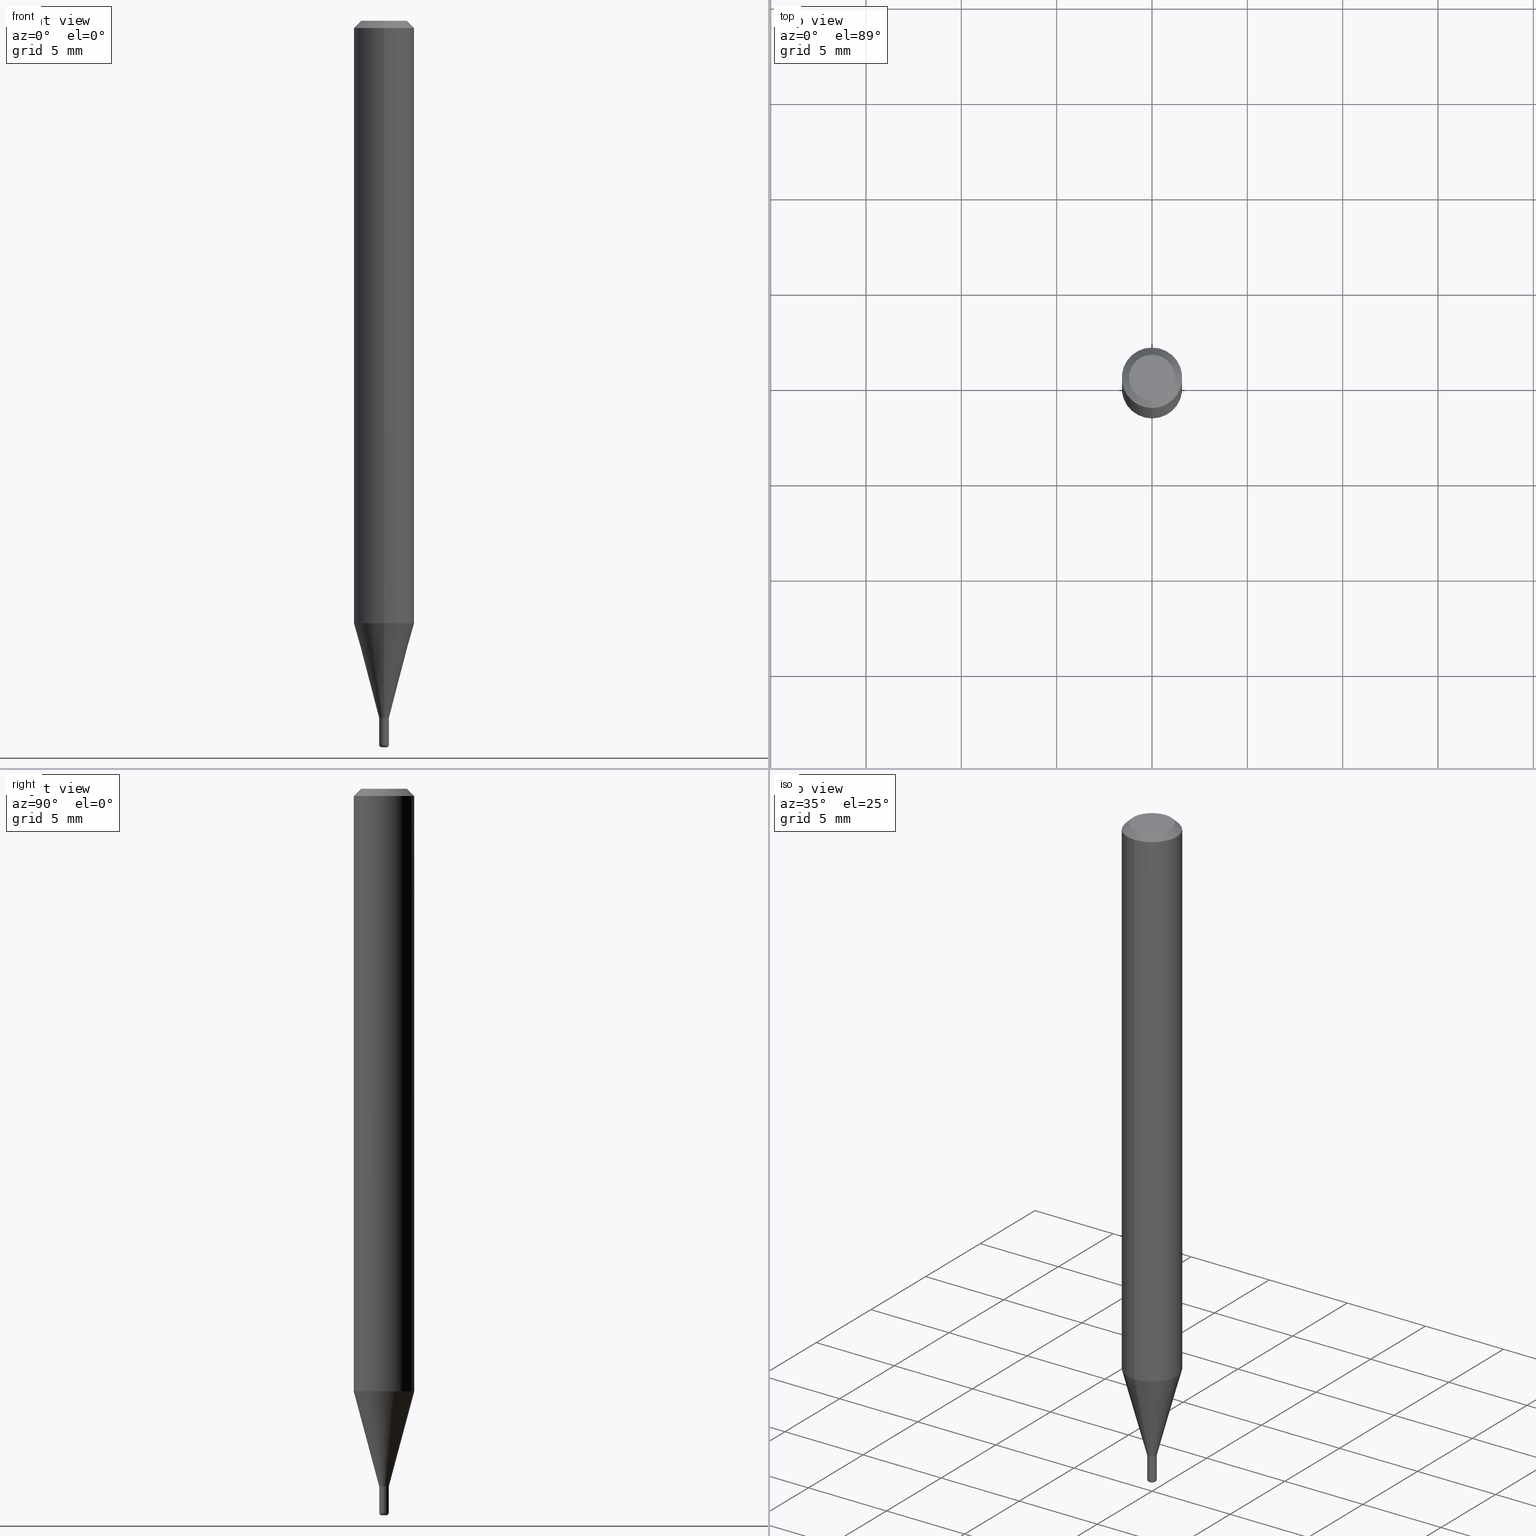
[diagram: canonical four-view strip — front | top / right | iso, engineering-drawing reading convention]
A machine part, canonical four-view strip (front | top / right | iso — engineering-drawing reading convention). The complete STEP part file that produces these views, byte-faithful:
ISO-10303-21;
HEADER;
FILE_DESCRIPTION (( 'STEP AP203' ),
    '1' );
FILE_NAME ('04021.STEP',
    '2024-02-29T19:34:22',
    ( '' ),
    ( '' ),
    'SwSTEP 2.0',
    'SolidWorks 2023',
    '' );
FILE_SCHEMA (( 'CONFIG_CONTROL_DESIGN' ));
ENDSEC;

DATA;
#1 = ORIENTED_EDGE ( 'NONE', *, *, #300, .T. ) ;
#2 = AXIS2_PLACEMENT_3D ( 'NONE', #41, #481, #442 ) ;
#3 = FACE_OUTER_BOUND ( 'NONE', #388, .T. ) ;
#4 = CC_DESIGN_APPROVAL ( #179, ( #434 ) ) ;
#5 = ORIENTED_EDGE ( 'NONE', *, *, #29, .F. ) ;
#6 = ORIENTED_EDGE ( 'NONE', *, *, #398, .T. ) ;
#7 = EDGE_CURVE ( 'NONE', #122, #465, #390, .T. ) ;
#8 = ORIENTED_EDGE ( 'NONE', *, *, #183, .T. ) ;
#9 = CARTESIAN_POINT ( 'NONE',  ( 3.042202856821611615E-29, -4.343816880085084386E-15, -1.244067332602634801 ) ) ;
#10 = APPROVAL_STATUS ( 'not_yet_approved' ) ;
#11 = ORIENTED_EDGE ( 'NONE', *, *, #360, .T. ) ;
#12 = CARTESIAN_POINT ( 'NONE',  ( 3.655975865246779683E-29, -5.219764601570503930E-15, -1.495000000000000329 ) ) ;
#13 = ORIENTED_EDGE ( 'NONE', *, *, #318, .F. ) ;
#14 = ADVANCED_BREP_SHAPE_REPRESENTATION ( '04021', ( #82, #422, #243 ), #107 ) ;
#15 =( LENGTH_UNIT ( ) NAMED_UNIT ( * ) SI_UNIT ( $, .METRE. ) );
#16 = CALENDAR_DATE ( 2024, 29, 2 ) ;
#17 = ORIENTED_EDGE ( 'NONE', *, *, #349, .T. ) ;
#18 = AXIS2_PLACEMENT_3D ( 'NONE', #396, #350, #392 ) ;
#19 = APPROVAL_PERSON_ORGANIZATION ( #449, #179, #219 ) ;
#20 = DIRECTION ( 'NONE',  ( 1.000000000000000000, -6.982962677686306942E-15, 0.000000000000000000 ) ) ;
#21 = EDGE_CURVE ( 'NONE', #220, #316, #312, .T. ) ;
#22 = CARTESIAN_POINT ( 'NONE',  ( 3.521330396690333980E-29, -5.027940323966735147E-15, -1.440000000000000391 ) ) ;
#23 = EDGE_CURVE ( 'NONE', #465, #51, #25, .T. ) ;
#24 = FACE_OUTER_BOUND ( 'NONE', #450, .T. ) ;
#25 = CIRCLE ( 'NONE', #208, 0.01000000000000008521 ) ;
#26 = FACE_OUTER_BOUND ( 'NONE', #73, .T. ) ;
#27 = PRODUCT_DEFINITION_FORMATION_WITH_SPECIFIED_SOURCE ( 'ANY', '', #279, .NOT_KNOWN. ) ;
#28 = CARTESIAN_POINT ( 'NONE',  ( 3.521330396690333980E-29, -5.027940323966735147E-15, -1.440000000000000391 ) ) ;
#29 = EDGE_CURVE ( 'NONE', #118, #47, #504, .T. ) ;
#30 = CARTESIAN_POINT ( 'NONE',  ( 4.440892098500625669E-16, 0.06250000000000000000, -2.182265765610561363E-16 ) ) ;
#31 = DIRECTION ( 'NONE',  ( -2.445368331034953437E-29, 3.491625224976898181E-15, 1.000000000000000000 ) ) ;
#32 = DIRECTION ( 'NONE',  ( -6.982962677686264344E-15, -1.000000000000000000, 0.000000000000000000 ) ) ;
#33 = ADVANCED_FACE ( 'NONE', ( #385 ), #124, .T. ) ;
#34 = DIMENSIONAL_EXPONENTS ( 1.000000000000000000, 0.000000000000000000, 0.000000000000000000, 0.000000000000000000, 0.000000000000000000, 0.000000000000000000, 0.000000000000000000 ) ;
#35 = FACE_OUTER_BOUND ( 'NONE', #137, .T. ) ;
#36 = ORIENTED_EDGE ( 'NONE', *, *, #447, .T. ) ;
#37 = CIRCLE ( 'NONE', #355, 0.01000000000000010256 ) ;
#38 = ORIENTED_EDGE ( 'NONE', *, *, #472, .T. ) ;
#39 = EDGE_LOOP ( 'NONE', ( #161, #17, #225, #272 ) ) ;
#40 = EDGE_CURVE ( 'NONE', #51, #465, #345, .T. ) ;
#41 = CARTESIAN_POINT ( 'NONE',  ( 3.521330396690333420E-29, -5.027940323966734358E-15, -1.440000000000000169 ) ) ;
#42 = EDGE_LOOP ( 'NONE', ( #280, #325, #397, #291 ) ) ;
#43 = LINE ( 'NONE', #448, #497 ) ;
#44 = VECTOR ( 'NONE', #344, 39.37007874015748143 ) ;
#45 = VECTOR ( 'NONE', #452, 39.37007874015748143 ) ;
#46 = SECURITY_CLASSIFICATION ( '', '', #171 ) ;
#47 = VERTEX_POINT ( 'NONE', #383 ) ;
#48 = EDGE_LOOP ( 'NONE', ( #477, #180, #165, #98 ) ) ;
#49 = FACE_OUTER_BOUND ( 'NONE', #134, .T. ) ;
#50 = VECTOR ( 'NONE', #214, 39.37007874015748143 ) ;
#51 = VERTEX_POINT ( 'NONE', #261 ) ;
#52 = DIRECTION ( 'NONE',  ( -2.438088387897960049E-29, 3.491481338843145188E-15, 1.000000000000000000 ) ) ;
#53 = ORIENTED_EDGE ( 'NONE', *, *, #217, .T. ) ;
#54 = CARTESIAN_POINT ( 'NONE',  ( 3.668536724130485580E-29, -5.236744396013051988E-15, -1.500000000000000444 ) ) ;
#55 = PERSON_AND_ORGANIZATION_ROLE ( 'creator' ) ;
#56 = CARTESIAN_POINT ( 'NONE',  ( 3.521330396690333980E-29, -5.027940323966735147E-15, -1.440000000000000391 ) ) ;
#57 = PERSON_AND_ORGANIZATION ( #210, #339 ) ;
#58 = VERTEX_POINT ( 'NONE', #353 ) ;
#59 = VECTOR ( 'NONE', #509, 39.37007874015748143 ) ;
#60 = AXIS2_PLACEMENT_3D ( 'NONE', #12, #138, #294 ) ;
#61 = ORIENTED_EDGE ( 'NONE', *, *, #21, .F. ) ;
#62 = PRODUCT_RELATED_PRODUCT_CATEGORY ( 'detail', '', ( #279 ) ) ;
#63 = CARTESIAN_POINT ( 'NONE',  ( 0.01000000000000017542, -5.289594228347368806E-15, -1.495000000000000329 ) ) ;
#64 = APPLICATION_PROTOCOL_DEFINITION ( 'international standard', 'config_control_design', 1994, #160 ) ;
#65 = CARTESIAN_POINT ( 'NONE',  ( 3.655975865246779683E-29, -5.219764601570503930E-15, -1.495000000000000329 ) ) ;
#66 = CARTESIAN_POINT ( 'NONE',  ( 3.521330396690333980E-29, -5.027940323966735147E-15, -1.440000000000000391 ) ) ;
#67 = AXIS2_PLACEMENT_3D ( 'NONE', #331, #287, #400 ) ;
#68 = AXIS2_PLACEMENT_3D ( 'NONE', #414, #250, #494 ) ;
#69 = ADVANCED_FACE ( 'NONE', ( #153 ), #221, .T. ) ;
#70 = DIRECTION ( 'NONE',  ( 6.982962677686265922E-15, 1.000000000000000000, -3.483106191921935554E-15 ) ) ;
#71 = CARTESIAN_POINT ( 'NONE',  ( 4.364351673553919652E-16, 0.06249999999999995143, -0.01500000000000046782 ) ) ;
#72 = FACE_OUTER_BOUND ( 'NONE', #42, .T. ) ;
#73 = EDGE_LOOP ( 'NONE', ( #478, #440, #376, #329 ) ) ;
#74 = UNCERTAINTY_MEASURE_WITH_UNIT (LENGTH_MEASURE( 1.000000000000000082E-05 ), #101, 'distance_accuracy_value', 'NONE');
#75 = LINE ( 'NONE', #315, #106 ) ;
#76 = ORIENTED_EDGE ( 'NONE', *, *, #378, .F. ) ;
#77 = ADVANCED_FACE ( 'NONE', ( #343 ), #330, .T. ) ;
#78 = AXIS2_PLACEMENT_3D ( 'NONE', #306, #114, #231 ) ;
#79 = APPROVAL_PERSON_ORGANIZATION ( #438, #145, #480 ) ;
#80 = DIRECTION ( 'NONE',  ( -1.000000000000000000, 7.105427357601055501E-15, 0.000000000000000000 ) ) ;
#81 = CC_DESIGN_PERSON_AND_ORGANIZATION_ASSIGNMENT ( #99, #55, ( #27 ) ) ;
#82 = MANIFOLD_SOLID_BREP ( 'Body-Move/Copy2[1]', #259 ) ;
#83 = PLANE ( 'NONE',  #67 ) ;
#84 = CARTESIAN_POINT ( 'NONE',  ( -6.982962677682815691E-17, -0.01000000000000513152, -1.440000000000000391 ) ) ;
#85 = ORIENTED_EDGE ( 'NONE', *, *, #7, .F. ) ;
#86 = EDGE_CURVE ( 'NONE', #119, #51, #263, .T. ) ;
#87 = CARTESIAN_POINT ( 'NONE',  ( 3.521330396690333420E-29, -5.027940323966734358E-15, -1.440000000000000169 ) ) ;
#88 = ORIENTED_EDGE ( 'NONE', *, *, #289, .T. ) ;
#89 = AXIS2_PLACEMENT_3D ( 'NONE', #159, #433, #163 ) ;
#90 = DIRECTION ( 'NONE',  ( -2.445468806185136597E-29, 3.491481338843145583E-15, 1.000000000000000000 ) ) ;
#91 = AXIS2_PLACEMENT_3D ( 'NONE', #56, #143, #377 ) ;
#92 = CC_DESIGN_DATE_AND_TIME_ASSIGNMENT ( #139, #295, ( #46 ) ) ;
#93 = EDGE_LOOP ( 'NONE', ( #482, #1, #363, #277 ) ) ;
#94 = DIRECTION ( 'NONE',  ( -2.445368331034953437E-29, 3.491625224976898181E-15, 1.000000000000000000 ) ) ;
#95 = CARTESIAN_POINT ( 'NONE',  ( -4.364351673553916201E-16, -0.06250000000000000000, 2.182265765610561363E-16 ) ) ;
#96 = PERSON_AND_ORGANIZATION ( #210, #339 ) ;
#97 = AXIS2_PLACEMENT_3D ( 'NONE', #299, #358, #271 ) ;
#98 = ORIENTED_EDGE ( 'NONE', *, *, #103, .F. ) ;
#99 = PERSON_AND_ORGANIZATION ( #210, #339 ) ;
#100 = VERTEX_POINT ( 'NONE', #467 ) ;
#101 =( CONVERSION_BASED_UNIT ( 'INCH', #310 ) LENGTH_UNIT ( ) NAMED_UNIT ( #34 ) );
#102 = DIRECTION ( 'NONE',  ( -6.982962677686265133E-15, -1.000000000000000000, 3.491625224976898181E-15 ) ) ;
#103 = EDGE_CURVE ( 'NONE', #100, #459, #260, .T. ) ;
#104 = CARTESIAN_POINT ( 'NONE',  ( -6.633814543798489092E-17, -0.009500000000005111994, -1.440000000000000169 ) ) ;
#105 = DIRECTION ( 'NONE',  ( 1.000000000000000000, -6.982962677686235945E-15, 0.000000000000000000 ) ) ;
#106 = VECTOR ( 'NONE', #236, 39.37007874015748143 ) ;
#107 =( GEOMETRIC_REPRESENTATION_CONTEXT ( 3 ) GLOBAL_UNCERTAINTY_ASSIGNED_CONTEXT ( ( #74 ) ) GLOBAL_UNIT_ASSIGNED_CONTEXT ( ( #101, #255, #108 ) ) REPRESENTATION_CONTEXT ( 'NONE', 'WORKASPACE' ) );
#108 =( NAMED_UNIT ( * ) SI_UNIT ( $, .STERADIAN. ) SOLID_ANGLE_UNIT ( ) );
#109 = CARTESIAN_POINT ( 'NONE',  ( -6.633814543798489092E-17, -0.009500000000005111994, -1.440000000000000169 ) ) ;
#110 = ORIENTED_EDGE ( 'NONE', *, *, #447, .F. ) ;
#111 = DIRECTION ( 'NONE',  ( -2.445368331034953437E-29, 3.491625224976898181E-15, 1.000000000000000000 ) ) ;
#112 = CC_DESIGN_PERSON_AND_ORGANIZATION_ASSIGNMENT ( #327, #485, ( #46 ) ) ;
#113 = DIRECTION ( 'NONE',  ( -6.982962677686265133E-15, -1.000000000000000000, 3.491625224976898181E-15 ) ) ;
#114 = DIRECTION ( 'NONE',  ( -2.445368331034953437E-29, 3.491625224976898181E-15, 1.000000000000000000 ) ) ;
#115 = VECTOR ( 'NONE', #268, 39.37007874015748143 ) ;
#116 = CIRCLE ( 'NONE', #60, 0.01000000000000017542 ) ;
#117 = LINE ( 'NONE', #194, #59 ) ;
#118 = VERTEX_POINT ( 'NONE', #63 ) ;
#119 = VERTEX_POINT ( 'NONE', #298 ) ;
#120 = ADVANCED_FACE ( 'NONE', ( #147 ), #227, .F. ) ;
#121 = DIRECTION ( 'NONE',  ( -6.982962677686266711E-15, -1.000000000000000000, 3.491481338843145583E-15 ) ) ;
#122 = VERTEX_POINT ( 'NONE', #104 ) ;
#123 = CARTESIAN_POINT ( 'NONE',  ( 3.655975865246779122E-29, -5.219764601570503141E-15, -1.495000000000000107 ) ) ;
#124 = CONICAL_SURFACE ( 'NONE', #184, 0.06250000000000000000, 0.7853981633974491672 ) ;
#125 = CIRCLE ( 'NONE', #2, 0.009500000000000084766 ) ;
#126 = VERTEX_POINT ( 'NONE', #419 ) ;
#127 = ADVANCED_FACE ( 'NONE', ( #24 ), #193, .T. ) ;
#128 = EDGE_LOOP ( 'NONE', ( #423, #201, #270, #305 ) ) ;
#129 = CIRCLE ( 'NONE', #274, 0.04749999999999999362 ) ;
#130 = CALENDAR_DATE ( 2024, 29, 2 ) ;
#131 = DIRECTION ( 'NONE',  ( -6.982962677686264344E-15, -1.000000000000000000, 0.000000000000000000 ) ) ;
#132 = CARTESIAN_POINT ( 'NONE',  ( 3.668203209277706016E-29, -5.237222008264719754E-15, -1.500000000000000444 ) ) ;
#133 = APPROVAL_DATE_TIME ( #332, #179 ) ;
#134 = EDGE_LOOP ( 'NONE', ( #518, #211 ) ) ;
#135 = EDGE_CURVE ( 'NONE', #459, #100, #421, .T. ) ;
#136 = DIRECTION ( 'NONE',  ( 1.000000000000000000, -6.982962677686267499E-15, 4.876176775795935793E-29 ) ) ;
#137 = EDGE_LOOP ( 'NONE', ( #13, #324 ) ) ;
#138 = DIRECTION ( 'NONE',  ( -2.445468806185136597E-29, 3.491481338843145583E-15, 1.000000000000000000 ) ) ;
#139 = DATE_AND_TIME ( #130, #202 ) ;
#140 = APPLICATION_PROTOCOL_DEFINITION ( 'international standard', 'config_control_design', 1994, #150 ) ;
#141 = AXIS2_PLACEMENT_3D ( 'NONE', #154, #471, #309 ) ;
#142 = LOCAL_TIME ( 14, 34, 22.00000000000000000, #338 ) ;
#143 = DIRECTION ( 'NONE',  ( -2.445368331034953437E-29, 3.491625224976898181E-15, 1.000000000000000000 ) ) ;
#144 = DIRECTION ( 'NONE',  ( -2.445368331034953437E-29, 3.491625224976898181E-15, 1.000000000000000000 ) ) ;
#145 = APPROVAL ( #402, 'UNSPECIFIED' ) ;
#146 = CARTESIAN_POINT ( 'NONE',  ( 3.520107712524816315E-29, -5.026194511354246695E-15, -1.439500000000000224 ) ) ;
#147 = FACE_OUTER_BOUND ( 'NONE', #39, .T. ) ;
#148 = AXIS2_PLACEMENT_3D ( 'NONE', #348, #266, #206 ) ;
#149 = AXIS2_PLACEMENT_3D ( 'NONE', #181, #252, #136 ) ;
#150 = APPLICATION_CONTEXT ( 'configuration controlled 3d designs of mechanical parts and assemblies' ) ;
#151 = ORIENTED_EDGE ( 'NONE', *, *, #384, .F. ) ;
#152 = DIRECTION ( 'NONE',  ( -6.982962677686264344E-15, -1.000000000000000000, 0.000000000000000000 ) ) ;
#153 = FACE_OUTER_BOUND ( 'NONE', #375, .T. ) ;
#154 = CARTESIAN_POINT ( 'NONE',  ( 3.521330396690333420E-29, -5.027940323966734358E-15, -1.440000000000000169 ) ) ;
#155 = ORIENTED_EDGE ( 'NONE', *, *, #464, .T. ) ;
#156 = AXIS2_PLACEMENT_3D ( 'NONE', #22, #191, #229 ) ;
#157 = CARTESIAN_POINT ( 'NONE',  ( 0.004999999999999994033, -5.254679414958934790E-15, -1.495000000000000107 ) ) ;
#158 = AXIS2_PLACEMENT_3D ( 'NONE', #286, #362, #166 ) ;
#159 = CARTESIAN_POINT ( 'NONE',  ( 0.000000000000000000, 0.000000000000000000, 0.000000000000000000 ) ) ;
#160 = APPLICATION_CONTEXT ( 'configuration controlled 3d designs of mechanical parts and assemblies' ) ;
#161 = ORIENTED_EDGE ( 'NONE', *, *, #289, .F. ) ;
#162 = ADVANCED_FACE ( 'NONE', ( #460 ), #501, .F. ) ;
#163 = DIRECTION ( 'NONE',  ( -6.982962677686265922E-15, -1.000000000000000000, 3.491625224976898181E-15 ) ) ;
#164 = VERTEX_POINT ( 'NONE', #426 ) ;
#165 = ORIENTED_EDGE ( 'NONE', *, *, #226, .T. ) ;
#166 = DIRECTION ( 'NONE',  ( -6.982962677686265922E-15, -1.000000000000000000, 3.483106191921935554E-15 ) ) ;
#167 = VERTEX_POINT ( 'NONE', #391 ) ;
#168 = EDGE_CURVE ( 'NONE', #320, #316, #517, .T. ) ;
#169 = AXIS2_PLACEMENT_3D ( 'NONE', #424, #197, #105 ) ;
#170 = ORIENTED_EDGE ( 'NONE', *, *, #135, .T. ) ;
#171 = SECURITY_CLASSIFICATION_LEVEL ( 'unclassified' ) ;
#172 = CARTESIAN_POINT ( 'NONE',  ( -4.364351673553612490E-16, -0.06250000000000435763, -1.244067332602634579 ) ) ;
#173 = ORIENTED_EDGE ( 'NONE', *, *, #420, .T. ) ;
#174 = AXIS2_PLACEMENT_3D ( 'NONE', #430, #233, #32 ) ;
#175 = LINE ( 'NONE', #488, #50 ) ;
#176 = EDGE_CURVE ( 'NONE', #119, #122, #476, .T. ) ;
#177 = LOCAL_TIME ( 14, 34, 22.00000000000000000, #489 ) ;
#178 = DIRECTION ( 'NONE',  ( -6.982962677686265922E-15, -1.000000000000000000, 3.483106191921935554E-15 ) ) ;
#179 = APPROVAL ( #257, 'UNSPECIFIED' ) ;
#180 = ORIENTED_EDGE ( 'NONE', *, *, #513, .T. ) ;
#181 = CARTESIAN_POINT ( 'NONE',  ( 0.000000000000000000, 0.000000000000000000, 0.000000000000000000 ) ) ;
#182 = DIRECTION ( 'NONE',  ( 1.000000000000000000, 0.000000000000000000, 0.000000000000000000 ) ) ;
#183 = EDGE_CURVE ( 'NONE', #126, #167, #356, .T. ) ;
#184 = AXIS2_PLACEMENT_3D ( 'NONE', #463, #190, #70 ) ;
#185 = CARTESIAN_POINT ( 'NONE',  ( 0.000000000000000000, 0.000000000000000000, 0.000000000000000000 ) ) ;
#186 = PERSON_AND_ORGANIZATION ( #210, #339 ) ;
#187 = EDGE_LOOP ( 'NONE', ( #11, #53, #5, #399 ) ) ;
#188 = DIRECTION ( 'NONE',  ( -2.445468806185136597E-29, 3.491481338843145583E-15, 1.000000000000000000 ) ) ;
#189 = ADVANCED_FACE ( 'NONE', ( #515 ), #380, .T. ) ;
#190 = DIRECTION ( 'NONE',  ( 2.445368331034953437E-29, -3.491625224976898181E-15, -1.000000000000000000 ) ) ;
#191 = DIRECTION ( 'NONE',  ( -2.445368331034953437E-29, 3.491625224976898181E-15, 1.000000000000000000 ) ) ;
#192 = AXIS2_PLACEMENT_3D ( 'NONE', #246, #364, #178 ) ;
#193 = CYLINDRICAL_SURFACE ( 'NONE', #148, 0.01000000000000008694 ) ;
#194 = CARTESIAN_POINT ( 'NONE',  ( -4.287811248607203282E-16, -0.06250000000000005551, -0.01500000000000003240 ) ) ;
#195 = CARTESIAN_POINT ( 'NONE',  ( 3.520107712524816315E-29, -5.026194511354246695E-15, -1.439500000000000224 ) ) ;
#196 = DIRECTION ( 'NONE',  ( 7.105427357601001859E-15, 1.000000000000000000, -3.491481338843145583E-15 ) ) ;
#197 = DIRECTION ( 'NONE',  ( -2.445468806185136597E-29, 3.491481338843145583E-15, 1.000000000000000000 ) ) ;
#198 = CARTESIAN_POINT ( 'NONE',  ( 6.680207437975457649E-45, -9.538350727164955580E-31, -2.731779647750730813E-16 ) ) ;
#199 = EDGE_CURVE ( 'NONE', #432, #118, #281, .T. ) ;
#200 = CYLINDRICAL_SURFACE ( 'NONE', #89, 0.06250000000000000000 ) ;
#201 = ORIENTED_EDGE ( 'NONE', *, *, #248, .T. ) ;
#202 = LOCAL_TIME ( 14, 34, 22.00000000000000000, #407 ) ;
#203 = CARTESIAN_POINT ( 'NONE',  ( 4.440892098500928887E-16, 0.06249999999999564237, -1.244067332602635023 ) ) ;
#204 = EDGE_LOOP ( 'NONE', ( #170, #357 ) ) ;
#205 = ORIENTED_EDGE ( 'NONE', *, *, #29, .T. ) ;
#206 = DIRECTION ( 'NONE',  ( 1.000000000000000000, -6.982962677686267499E-15, 4.876176775795935793E-29 ) ) ;
#207 = DIRECTION ( 'NONE',  ( 1.839019923739594004E-15, 0.2588190451025240701, 0.9659258262890673130 ) ) ;
#208 = AXIS2_PLACEMENT_3D ( 'NONE', #146, #429, #351 ) ;
#209 = AXIS2_PLACEMENT_3D ( 'NONE', #323, #439, #403 ) ;
#210 = PERSON ( 'UNSPECIFIED', 'UNSPECIFIED', 'UNSPECIFIED', ('UNSPECIFIED'), ('UNSPECIFIED'), ('UNSPECIFIED') ) ;
#211 = ORIENTED_EDGE ( 'NONE', *, *, #311, .T. ) ;
#212 = ADVANCED_FACE ( 'NONE', ( #35 ), #319, .F. ) ;
#213 = AXIS2_PLACEMENT_3D ( 'NONE', #198, #354, #512 ) ;
#214 = DIRECTION ( 'NONE',  ( -2.445468806185136877E-29, 3.491481338843145188E-15, 1.000000000000000000 ) ) ;
#215 = CARTESIAN_POINT ( 'NONE',  ( 0.000000000000000000, 0.000000000000000000, 0.000000000000000000 ) ) ;
#216 = CARTESIAN_POINT ( 'NONE',  ( 0.01000000000000000021, -5.097562754710993158E-15, -1.440000000000000169 ) ) ;
#217 = EDGE_CURVE ( 'NONE', #58, #47, #249, .T. ) ;
#218 = DIRECTION ( 'NONE',  ( 1.000000000000000000, -6.982962677686265922E-15, 4.876176775795935793E-29 ) ) ;
#219 = APPROVAL_ROLE ( '' ) ;
#220 = VERTEX_POINT ( 'NONE', #203 ) ;
#221 = CONICAL_SURFACE ( 'NONE', #156, 0.01000000000000010256, 0.2617993877991494078 ) ;
#222 = FACE_OUTER_BOUND ( 'NONE', #48, .T. ) ;
#223 = AXIS2_PLACEMENT_3D ( 'NONE', #386, #144, #113 ) ;
#224 = ORIENTED_EDGE ( 'NONE', *, *, #135, .F. ) ;
#225 = ORIENTED_EDGE ( 'NONE', *, *, #40, .T. ) ;
#226 = EDGE_CURVE ( 'NONE', #118, #459, #75, .T. ) ;
#227 = CYLINDRICAL_SURFACE ( 'NONE', #223, 0.01000000000000009388 ) ;
#228 = AXIS2_PLACEMENT_3D ( 'NONE', #157, #121, #275 ) ;
#229 = DIRECTION ( 'NONE',  ( -6.982962677686265922E-15, -1.000000000000000000, 0.000000000000000000 ) ) ;
#230 = CIRCLE ( 'NONE', #91, 0.01000000000000010256 ) ;
#231 = DIRECTION ( 'NONE',  ( -6.982962677686265922E-15, -1.000000000000000000, 3.491625224976898181E-15 ) ) ;
#232 = DIRECTION ( 'NONE',  ( -6.982962677686265133E-15, -1.000000000000000000, 0.000000000000000000 ) ) ;
#233 = DIRECTION ( 'NONE',  ( -2.445368331034953437E-29, 3.491625224976898181E-15, 1.000000000000000000 ) ) ;
#234 = DIRECTION ( 'NONE',  ( -1.807323732225323828E-15, -0.2588190451025172978, 0.9659258262890690894 ) ) ;
#235 = ADVANCED_FACE ( 'NONE', ( #238 ), #200, .T. ) ;
#236 = DIRECTION ( 'NONE',  ( -2.445468806185136877E-29, 3.491481338843145188E-15, 1.000000000000000000 ) ) ;
#237 = VERTEX_POINT ( 'NONE', #474 ) ;
#238 = FACE_OUTER_BOUND ( 'NONE', #336, .T. ) ;
#239 = APPROVAL ( #10, 'UNSPECIFIED' ) ;
#240 = DATE_AND_TIME ( #284, #405 ) ;
#241 = ORIENTED_EDGE ( 'NONE', *, *, #23, .T. ) ;
#242 = AXIS2_PLACEMENT_3D ( 'NONE', #185, #456, #102 ) ;
#243 = AXIS2_PLACEMENT_3D ( 'NONE', #215, #247, #182 ) ;
#244 = DIRECTION ( 'NONE',  ( -2.445368331034953437E-29, 3.491625224976898181E-15, 1.000000000000000000 ) ) ;
#245 = ADVANCED_FACE ( 'NONE', ( #26 ), #486, .T. ) ;
#246 = CARTESIAN_POINT ( 'NONE',  ( 3.668052496552491514E-31, -5.237437837465434366E-17, -0.01500000000000024925 ) ) ;
#247 = DIRECTION ( 'NONE',  ( 0.000000000000000000, 0.000000000000000000, 1.000000000000000000 ) ) ;
#248 = EDGE_CURVE ( 'NONE', #237, #164, #117, .T. ) ;
#249 = CIRCLE ( 'NONE', #303, 0.005000000000000181383 ) ;
#250 = DIRECTION ( 'NONE',  ( -2.445468806185136597E-29, 3.491481338843145583E-15, 1.000000000000000000 ) ) ;
#251 = ORIENTED_EDGE ( 'NONE', *, *, #401, .F. ) ;
#252 = DIRECTION ( 'NONE',  ( -2.445468806185136597E-29, 3.491481338843145583E-15, 1.000000000000000000 ) ) ;
#253 = PERSON_AND_ORGANIZATION_ROLE ( 'design_owner' ) ;
#254 = ORIENTED_EDGE ( 'NONE', *, *, #21, .T. ) ;
#255 =( NAMED_UNIT ( * ) PLANE_ANGLE_UNIT ( ) SI_UNIT ( $, .RADIAN. ) );
#256 = PLANE ( 'NONE',  #347 ) ;
#257 = APPROVAL_STATUS ( 'not_yet_approved' ) ;
#258 = EDGE_LOOP ( 'NONE', ( #413, #493, #264, #85 ) ) ;
#259 = CLOSED_SHELL ( 'NONE', ( #490, #127, #162, #484, #245, #470 ) ) ;
#260 = CIRCLE ( 'NONE', #169, 0.01000000000000000021 ) ;
#261 = CARTESIAN_POINT ( 'NONE',  ( 7.105427357604558044E-17, 0.009999999999995025021, -1.439500000000000224 ) ) ;
#262 = ADVANCED_FACE ( 'NONE', ( #317 ), #468, .T. ) ;
#263 = LINE ( 'NONE', #308, #44 ) ;
#264 = ORIENTED_EDGE ( 'NONE', *, *, #23, .F. ) ;
#265 = CARTESIAN_POINT ( 'NONE',  ( -0.004999999999999994033, -5.184237464782498889E-15, -1.495000000000000107 ) ) ;
#266 = DIRECTION ( 'NONE',  ( -2.445468806185136597E-29, 3.491481338843145583E-15, 1.000000000000000000 ) ) ;
#267 = LOCAL_TIME ( 14, 34, 22.00000000000000000, #296 ) ;
#268 = DIRECTION ( 'NONE',  ( -2.445368331034953717E-29, 3.491625224976897786E-15, 1.000000000000000000 ) ) ;
#269 = DIRECTION ( 'NONE',  ( -2.445368331034953437E-29, 3.491625224976898181E-15, 1.000000000000000000 ) ) ;
#270 = ORIENTED_EDGE ( 'NONE', *, *, #409, .T. ) ;
#271 = DIRECTION ( 'NONE',  ( -1.000000000000000000, 6.982962677686265922E-15, -4.876176775795935793E-29 ) ) ;
#272 = ORIENTED_EDGE ( 'NONE', *, *, #420, .F. ) ;
#273 = EDGE_LOOP ( 'NONE', ( #370, #76, #8, #304 ) ) ;
#274 = AXIS2_PLACEMENT_3D ( 'NONE', #367, #410, #278 ) ;
#275 = DIRECTION ( 'NONE',  ( 1.000000000000000000, -6.982962677686273810E-15, 0.000000000000000000 ) ) ;
#276 = VECTOR ( 'NONE', #408, 39.37007874015748143 ) ;
#277 = ORIENTED_EDGE ( 'NONE', *, *, #464, .F. ) ;
#278 = DIRECTION ( 'NONE',  ( -6.982962677686266711E-15, -1.000000000000000000, 3.491625224976898575E-15 ) ) ;
#279 = PRODUCT ( '04021', '04021', '', ( #457 ) ) ;
#280 = ORIENTED_EDGE ( 'NONE', *, *, #86, .F. ) ;
#281 = CIRCLE ( 'NONE', #228, 0.005000000000000181383 ) ;
#282 = DIRECTION ( 'NONE',  ( -6.982962677686265922E-15, -1.000000000000000000, 4.370956789862821150E-15 ) ) ;
#283 = PERSON_AND_ORGANIZATION_ROLE ( 'creator' ) ;
#284 = CALENDAR_DATE ( 2024, 29, 2 ) ;
#285 = CC_DESIGN_PERSON_AND_ORGANIZATION_ASSIGNMENT ( #186, #283, ( #434 ) ) ;
#286 = CARTESIAN_POINT ( 'NONE',  ( 3.668052496552491514E-31, -5.237437837465434366E-17, -0.01500000000000024925 ) ) ;
#287 = DIRECTION ( 'NONE',  ( 2.445368331034953437E-29, -3.491625224976897786E-15, -1.000000000000000000 ) ) ;
#288 = ORIENTED_EDGE ( 'NONE', *, *, #342, .F. ) ;
#289 = EDGE_CURVE ( 'NONE', #516, #320, #37, .T. ) ;
#290 = FACE_OUTER_BOUND ( 'NONE', #187, .T. ) ;
#291 = ORIENTED_EDGE ( 'NONE', *, *, #40, .F. ) ;
#292 = CC_DESIGN_DATE_AND_TIME_ASSIGNMENT ( #374, #492, ( #434 ) ) ;
#293 = VECTOR ( 'NONE', #335, 39.37007874015748143 ) ;
#294 = DIRECTION ( 'NONE',  ( 1.000000000000000000, -6.982962677686306942E-15, 0.000000000000000000 ) ) ;
#295 = DATE_TIME_ROLE ( 'classification_date' ) ;
#296 = COORDINATED_UNIVERSAL_TIME_OFFSET ( 5, 0, .BEHIND. ) ;
#297 = CARTESIAN_POINT ( 'NONE',  ( -6.982962677682828017E-17, -0.01000000000000514540, -1.439500000000000224 ) ) ;
#298 = CARTESIAN_POINT ( 'NONE',  ( 6.927791673664556259E-17, 0.009499999999995055802, -1.440000000000000169 ) ) ;
#299 = CARTESIAN_POINT ( 'NONE',  ( 6.982962677689787249E-17, 0.009999999999994971245, -1.440000000000000169 ) ) ;
#300 = EDGE_CURVE ( 'NONE', #220, #167, #473, .T. ) ;
#301 = DIRECTION ( 'NONE',  ( -2.445468806185136597E-29, 3.491481338843145583E-15, 1.000000000000000000 ) ) ;
#302 = VECTOR ( 'NONE', #425, 39.37007874015748143 ) ;
#303 = AXIS2_PLACEMENT_3D ( 'NONE', #265, #196, #80 ) ;
#304 = ORIENTED_EDGE ( 'NONE', *, *, #342, .T. ) ;
#305 = ORIENTED_EDGE ( 'NONE', *, *, #183, .F. ) ;
#306 = CARTESIAN_POINT ( 'NONE',  ( 0.000000000000000000, 0.000000000000000000, 0.000000000000000000 ) ) ;
#307 = ADVANCED_FACE ( 'NONE', ( #72 ), #393, .T. ) ;
#308 = CARTESIAN_POINT ( 'NONE',  ( 6.750155989724532287E-17, 0.009499999999995055802, -1.440000000000000169 ) ) ;
#309 = DIRECTION ( 'NONE',  ( -6.982962677686265922E-15, -1.000000000000000000, 3.491625224976897786E-15 ) ) ;
#310 = LENGTH_MEASURE_WITH_UNIT ( LENGTH_MEASURE( 0.02539999999999999897 ), #15 );
#311 = EDGE_CURVE ( 'NONE', #237, #126, #461, .T. ) ;
#312 = CIRCLE ( 'NONE', #379, 0.06250000000000000000 ) ;
#313 = AXIS2_PLACEMENT_3D ( 'NONE', #123, #437, #431 ) ;
#314 = CC_DESIGN_APPROVAL ( #239, ( #27 ) ) ;
#315 = CARTESIAN_POINT ( 'NONE',  ( 0.01000000000000008694, -6.982962677686328587E-17, 4.876176775795978007E-31 ) ) ;
#316 = VERTEX_POINT ( 'NONE', #172 ) ;
#317 = FACE_OUTER_BOUND ( 'NONE', #93, .T. ) ;
#318 = EDGE_CURVE ( 'NONE', #122, #119, #125, .T. ) ;
#319 = PLANE ( 'NONE',  #141 ) ;
#320 = VERTEX_POINT ( 'NONE', #84 ) ;
#321 = SHAPE_DEFINITION_REPRESENTATION ( #483, #14 ) ;
#322 = CIRCLE ( 'NONE', #209, 0.004999999999999994033 ) ;
#323 = CARTESIAN_POINT ( 'NONE',  ( 3.668203209277706016E-29, -5.237222008264719754E-15, -1.500000000000000444 ) ) ;
#324 = ORIENTED_EDGE ( 'NONE', *, *, #176, .F. ) ;
#325 = ORIENTED_EDGE ( 'NONE', *, *, #176, .T. ) ;
#326 = ADVANCED_FACE ( 'NONE', ( #328 ), #404, .T. ) ;
#327 = PERSON_AND_ORGANIZATION ( #210, #339 ) ;
#328 = FACE_OUTER_BOUND ( 'NONE', #258, .T. ) ;
#329 = ORIENTED_EDGE ( 'NONE', *, *, #513, .F. ) ;
#330 = CONICAL_SURFACE ( 'NONE', #372, 0.01000000000000010256, 0.2617993877991494078 ) ;
#331 = CARTESIAN_POINT ( 'NONE',  ( 3.316907271900976096E-16, 0.04749999999999999362, -3.024411805739391776E-16 ) ) ;
#332 = DATE_AND_TIME ( #16, #177 ) ;
#333 = CARTESIAN_POINT ( 'NONE',  ( 7.105427357601067334E-17, 0.01000000000000009388, -3.491625224976930770E-17 ) ) ;
#334 = ORIENTED_EDGE ( 'NONE', *, *, #360, .F. ) ;
#335 = DIRECTION ( 'NONE',  ( -2.445368331034953717E-29, 3.491625224976897786E-15, 1.000000000000000000 ) ) ;
#336 = EDGE_LOOP ( 'NONE', ( #359, #254, #155, #288 ) ) ;
#337 = LINE ( 'NONE', #95, #45 ) ;
#338 = COORDINATED_UNIVERSAL_TIME_OFFSET ( 5, 0, .BEHIND. ) ;
#339 = ORGANIZATION ( 'UNSPECIFIED', 'UNSPECIFIED', '' ) ;
#340 = CARTESIAN_POINT ( 'NONE',  ( 2.575717417130696783E-16, 0.009999999999995073593, -1.440000000000000391 ) ) ;
#341 = PERSON_AND_ORGANIZATION ( #210, #339 ) ;
#342 = EDGE_CURVE ( 'NONE', #167, #164, #506, .T. ) ;
#343 = FACE_OUTER_BOUND ( 'NONE', #475, .T. ) ;
#344 = DIRECTION ( 'NONE',  ( 5.024295867788576727E-15, 0.7071067811866224018, 0.7071067811864726327 ) ) ;
#345 = CIRCLE ( 'NONE', #496, 0.01000000000000008521 ) ;
#346 = AXIS2_PLACEMENT_3D ( 'NONE', #132, #90, #373 ) ;
#347 = AXIS2_PLACEMENT_3D ( 'NONE', #54, #52, #218 ) ;
#348 = CARTESIAN_POINT ( 'NONE',  ( 0.000000000000000000, 0.000000000000000000, 0.000000000000000000 ) ) ;
#349 = EDGE_CURVE ( 'NONE', #516, #51, #446, .T. ) ;
#350 = DIRECTION ( 'NONE',  ( 2.445368331034953437E-29, -3.491625224976898181E-15, -1.000000000000000000 ) ) ;
#351 = DIRECTION ( 'NONE',  ( -6.982962677686265133E-15, -1.000000000000000000, 0.000000000000000000 ) ) ;
#352 = CARTESIAN_POINT ( 'NONE',  ( -6.982962677682815691E-17, -0.01000000000000513152, -1.440000000000000391 ) ) ;
#353 = CARTESIAN_POINT ( 'NONE',  ( -0.004999999999999994033, -5.175202599735604281E-15, -1.500000000000000444 ) ) ;
#354 = DIRECTION ( 'NONE',  ( -2.445368331034953437E-29, 3.491625224976898181E-15, 1.000000000000000000 ) ) ;
#355 = AXIS2_PLACEMENT_3D ( 'NONE', #66, #269, #389 ) ;
#356 = LINE ( 'NONE', #71, #387 ) ;
#357 = ORIENTED_EDGE ( 'NONE', *, *, #103, .T. ) ;
#358 = DIRECTION ( 'NONE',  ( 2.438088387897960049E-29, -3.491481338843145188E-15, -1.000000000000000000 ) ) ;
#359 = ORIENTED_EDGE ( 'NONE', *, *, #300, .F. ) ;
#360 = EDGE_CURVE ( 'NONE', #432, #58, #322, .T. ) ;
#361 = COORDINATED_UNIVERSAL_TIME_OFFSET ( 5, 0, .BEHIND. ) ;
#362 = DIRECTION ( 'NONE',  ( -2.445368331034953437E-29, 3.491625224976898181E-15, 1.000000000000000000 ) ) ;
#363 = ORIENTED_EDGE ( 'NONE', *, *, #409, .F. ) ;
#364 = DIRECTION ( 'NONE',  ( -2.445368331034953437E-29, 3.491625224976898181E-15, 1.000000000000000000 ) ) ;
#365 = CLOSED_SHELL ( 'NONE', ( #120, #326, #189, #262, #77, #69, #235, #33, #441, #212, #307, #451 ) ) ;
#366 = AXIS2_PLACEMENT_3D ( 'NONE', #466, #111, #152 ) ;
#367 = CARTESIAN_POINT ( 'NONE',  ( 6.680207437975457649E-45, -9.538350727164955580E-31, -2.731779647750730813E-16 ) ) ;
#368 = ORIENTED_EDGE ( 'NONE', *, *, #168, .T. ) ;
#369 = APPROVAL_DATE_TIME ( #240, #145 ) ;
#370 = ORIENTED_EDGE ( 'NONE', *, *, #248, .F. ) ;
#371 = LINE ( 'NONE', #406, #293 ) ;
#372 = AXIS2_PLACEMENT_3D ( 'NONE', #28, #31, #502 ) ;
#373 = DIRECTION ( 'NONE',  ( 1.000000000000000000, -6.982962677686340863E-15, 0.000000000000000000 ) ) ;
#374 = DATE_AND_TIME ( #418, #142 ) ;
#375 = EDGE_LOOP ( 'NONE', ( #110, #88, #368, #61 ) ) ;
#376 = ORIENTED_EDGE ( 'NONE', *, *, #199, .T. ) ;
#377 = DIRECTION ( 'NONE',  ( -6.982962677686265922E-15, -1.000000000000000000, 0.000000000000000000 ) ) ;
#378 = EDGE_CURVE ( 'NONE', #126, #237, #129, .T. ) ;
#379 = AXIS2_PLACEMENT_3D ( 'NONE', #510, #458, #507 ) ;
#380 = CONICAL_SURFACE ( 'NONE', #18, 0.06250000000000000000, 0.7853981633974491672 ) ;
#381 = CC_DESIGN_APPROVAL ( #145, ( #46 ) ) ;
#382 = PERSON_AND_ORGANIZATION_ROLE ( 'design_supplier' ) ;
#383 = CARTESIAN_POINT ( 'NONE',  ( -0.01000000000000017542, -5.052694591176305630E-15, -1.495000000000000329 ) ) ;
#384 = EDGE_CURVE ( 'NONE', #58, #432, #505, .T. ) ;
#385 = FACE_OUTER_BOUND ( 'NONE', #273, .T. ) ;
#386 = CARTESIAN_POINT ( 'NONE',  ( 0.000000000000000000, 0.000000000000000000, 0.000000000000000000 ) ) ;
#387 = VECTOR ( 'NONE', #511, 39.37007874015748143 ) ;
#388 = EDGE_LOOP ( 'NONE', ( #487, #500, #173, #241 ) ) ;
#389 = DIRECTION ( 'NONE',  ( -6.982962677686265922E-15, -1.000000000000000000, 0.000000000000000000 ) ) ;
#390 = LINE ( 'NONE', #109, #302 ) ;
#391 = CARTESIAN_POINT ( 'NONE',  ( 4.440892098500932831E-16, 0.06249999999999995143, -0.01500000000000046782 ) ) ;
#392 = DIRECTION ( 'NONE',  ( 6.982962677686265922E-15, 1.000000000000000000, -3.483106191921935554E-15 ) ) ;
#393 = CONICAL_SURFACE ( 'NONE', #174, 0.009500000000000084766, 0.7853981633975507526 ) ;
#394 = EDGE_LOOP ( 'NONE', ( #334, #151 ) ) ;
#395 = TOROIDAL_SURFACE ( 'NONE', #68, 0.004999999999999994033, 0.005000000000000181383 ) ;
#396 = CARTESIAN_POINT ( 'NONE',  ( 3.668052496552491514E-31, -5.237437837465434366E-17, -0.01500000000000024925 ) ) ;
#397 = ORIENTED_EDGE ( 'NONE', *, *, #7, .T. ) ;
#398 = EDGE_CURVE ( 'NONE', #47, #100, #175, .T. ) ;
#399 = ORIENTED_EDGE ( 'NONE', *, *, #199, .F. ) ;
#400 = DIRECTION ( 'NONE',  ( 6.982962677686265922E-15, 1.000000000000000000, -3.491625224976897786E-15 ) ) ;
#401 = EDGE_CURVE ( 'NONE', #316, #220, #444, .T. ) ;
#402 = APPROVAL_STATUS ( 'not_yet_approved' ) ;
#403 = DIRECTION ( 'NONE',  ( 1.000000000000000000, -6.982962677686340863E-15, 0.000000000000000000 ) ) ;
#404 = CONICAL_SURFACE ( 'NONE', #428, 0.009500000000000084766, 0.7853981633975507526 ) ;
#405 = LOCAL_TIME ( 14, 34, 22.00000000000000000, #361 ) ;
#406 = CARTESIAN_POINT ( 'NONE',  ( -6.982962677686331052E-17, -0.01000000000000009388, 3.491625224976930770E-17 ) ) ;
#407 = COORDINATED_UNIVERSAL_TIME_OFFSET ( 5, 0, .BEHIND. ) ;
#408 = DIRECTION ( 'NONE',  ( -2.445368331034953717E-29, 3.491625224976897786E-15, 1.000000000000000000 ) ) ;
#409 = EDGE_CURVE ( 'NONE', #164, #167, #469, .T. ) ;
#410 = DIRECTION ( 'NONE',  ( -2.445368331034953437E-29, 3.491625224976898181E-15, 1.000000000000000000 ) ) ;
#411 = AXIS2_PLACEMENT_3D ( 'NONE', #9, #244, #282 ) ;
#412 = FACE_OUTER_BOUND ( 'NONE', #394, .T. ) ;
#413 = ORIENTED_EDGE ( 'NONE', *, *, #318, .T. ) ;
#414 = CARTESIAN_POINT ( 'NONE',  ( 3.655975865246779122E-29, -5.219764601570503141E-15, -1.495000000000000107 ) ) ;
#415 = DATE_AND_TIME ( #453, #267 ) ;
#416 = ORIENTED_EDGE ( 'NONE', *, *, #226, .F. ) ;
#417 = CYLINDRICAL_SURFACE ( 'NONE', #242, 0.01000000000000009388 ) ;
#418 = CALENDAR_DATE ( 2024, 29, 2 ) ;
#419 = CARTESIAN_POINT ( 'NONE',  ( 3.840629472727447874E-16, 0.04749999999999999362, -4.390301629614757676E-16 ) ) ;
#420 = EDGE_CURVE ( 'NONE', #320, #465, #371, .T. ) ;
#421 = CIRCLE ( 'NONE', #514, 0.01000000000000000021 ) ;
#422 = MANIFOLD_SOLID_BREP ( 'Body-Move/Copy2[2]', #365 ) ;
#423 = ORIENTED_EDGE ( 'NONE', *, *, #311, .F. ) ;
#424 = CARTESIAN_POINT ( 'NONE',  ( 3.521475080906597305E-29, -5.027733127934130649E-15, -1.440000000000000169 ) ) ;
#425 = DIRECTION ( 'NONE',  ( -4.937700262165053702E-15, -0.7071067811866175168, 0.7071067811864775177 ) ) ;
#426 = CARTESIAN_POINT ( 'NONE',  ( -4.364351673553912750E-16, -0.06250000000000005551, -0.01500000000000003240 ) ) ;
#427 = CARTESIAN_POINT ( 'NONE',  ( 3.521475080906597305E-29, -5.027733127934130649E-15, -1.440000000000000169 ) ) ;
#428 = AXIS2_PLACEMENT_3D ( 'NONE', #87, #94, #131 ) ;
#429 = DIRECTION ( 'NONE',  ( -2.445368331034953437E-29, 3.491625224976898181E-15, 1.000000000000000000 ) ) ;
#430 = CARTESIAN_POINT ( 'NONE',  ( 3.521330396690333420E-29, -5.027940323966734358E-15, -1.440000000000000169 ) ) ;
#431 = DIRECTION ( 'NONE',  ( 1.000000000000000000, -6.982962677686307731E-15, 4.883557194083127475E-29 ) ) ;
#432 = VERTEX_POINT ( 'NONE', #491 ) ;
#433 = DIRECTION ( 'NONE',  ( -2.445368331034953437E-29, 3.491625224976898181E-15, 1.000000000000000000 ) ) ;
#434 = PRODUCT_DEFINITION ( 'UNKNOWN', '', #27, #436 ) ;
#435 = VECTOR ( 'NONE', #234, 39.37007874015748854 ) ;
#436 = DESIGN_CONTEXT ( 'detailed design', #150, 'design' ) ;
#437 = DIRECTION ( 'NONE',  ( -2.445468806185136597E-29, 3.491481338843145583E-15, 1.000000000000000000 ) ) ;
#438 = PERSON_AND_ORGANIZATION ( #210, #339 ) ;
#439 = DIRECTION ( 'NONE',  ( -2.445468806185136597E-29, 3.491481338843145583E-15, 1.000000000000000000 ) ) ;
#440 = ORIENTED_EDGE ( 'NONE', *, *, #384, .T. ) ;
#441 = ADVANCED_FACE ( 'NONE', ( #49 ), #83, .F. ) ;
#442 = DIRECTION ( 'NONE',  ( -6.982962677686264344E-15, -1.000000000000000000, 0.000000000000000000 ) ) ;
#443 = AXIS2_PLACEMENT_3D ( 'NONE', #65, #301, #20 ) ;
#444 = CIRCLE ( 'NONE', #411, 0.06250000000000000000 ) ;
#445 = ORIENTED_EDGE ( 'NONE', *, *, #168, .F. ) ;
#446 = LINE ( 'NONE', #333, #276 ) ;
#447 = EDGE_CURVE ( 'NONE', #516, #220, #43, .T. ) ;
#448 = CARTESIAN_POINT ( 'NONE',  ( 7.105427357604595022E-17, 0.009999999999995073593, -1.440000000000000391 ) ) ;
#449 = PERSON_AND_ORGANIZATION ( #210, #339 ) ;
#450 = EDGE_LOOP ( 'NONE', ( #205, #6, #224, #416 ) ) ;
#451 = ADVANCED_FACE ( 'NONE', ( #3 ), #417, .F. ) ;
#452 = DIRECTION ( 'NONE',  ( -2.445368331034953717E-29, 3.491625224976897786E-15, 1.000000000000000000 ) ) ;
#453 = CALENDAR_DATE ( 2024, 29, 2 ) ;
#454 = DIRECTION ( 'NONE',  ( 1.000000000000000000, -6.982962677686235945E-15, 0.000000000000000000 ) ) ;
#455 = APPROVAL_DATE_TIME ( #415, #239 ) ;
#456 = DIRECTION ( 'NONE',  ( -2.445368331034953437E-29, 3.491625224976898181E-15, 1.000000000000000000 ) ) ;
#457 = MECHANICAL_CONTEXT ( 'NONE', #160, 'mechanical' ) ;
#458 = DIRECTION ( 'NONE',  ( -2.445368331034953437E-29, 3.491625224976898181E-15, 1.000000000000000000 ) ) ;
#459 = VERTEX_POINT ( 'NONE', #216 ) ;
#460 = FACE_OUTER_BOUND ( 'NONE', #204, .T. ) ;
#461 = CIRCLE ( 'NONE', #213, 0.04749999999999999362 ) ;
#462 = CC_DESIGN_SECURITY_CLASSIFICATION ( #46, ( #27 ) ) ;
#463 = CARTESIAN_POINT ( 'NONE',  ( 3.668052496552491514E-31, -5.237437837465434366E-17, -0.01500000000000024925 ) ) ;
#464 = EDGE_CURVE ( 'NONE', #316, #164, #337, .T. ) ;
#465 = VERTEX_POINT ( 'NONE', #297 ) ;
#466 = CARTESIAN_POINT ( 'NONE',  ( 3.521330396690333420E-29, -5.027940323966734358E-15, -1.440000000000000169 ) ) ;
#467 = CARTESIAN_POINT ( 'NONE',  ( -0.01000000000000000021, -5.052694591176307208E-15, -1.440000000000000169 ) ) ;
#468 = CYLINDRICAL_SURFACE ( 'NONE', #78, 0.06250000000000000000 ) ;
#469 = CIRCLE ( 'NONE', #192, 0.06250000000000000000 ) ;
#470 = ADVANCED_FACE ( 'NONE', ( #412 ), #256, .F. ) ;
#471 = DIRECTION ( 'NONE',  ( -2.445368331034953437E-29, 3.491625224976897786E-15, 1.000000000000000000 ) ) ;
#472 = EDGE_CURVE ( 'NONE', #320, #516, #230, .T. ) ;
#473 = LINE ( 'NONE', #30, #115 ) ;
#474 = CARTESIAN_POINT ( 'NONE',  ( -3.773273898774340269E-16, -0.04749999999999999362, -1.073257665886703951E-16 ) ) ;
#475 = EDGE_LOOP ( 'NONE', ( #38, #36, #251, #445 ) ) ;
#476 = CIRCLE ( 'NONE', #366, 0.009500000000000084766 ) ;
#477 = ORIENTED_EDGE ( 'NONE', *, *, #398, .F. ) ;
#478 = ORIENTED_EDGE ( 'NONE', *, *, #217, .F. ) ;
#479 = CC_DESIGN_PERSON_AND_ORGANIZATION_ASSIGNMENT ( #96, #253, ( #279 ) ) ;
#480 = APPROVAL_ROLE ( '' ) ;
#481 = DIRECTION ( 'NONE',  ( -2.445368331034953437E-29, 3.491625224976898181E-15, 1.000000000000000000 ) ) ;
#482 = ORIENTED_EDGE ( 'NONE', *, *, #401, .T. ) ;
#483 = PRODUCT_DEFINITION_SHAPE ( 'NONE', 'NONE',  #434 ) ;
#484 = ADVANCED_FACE ( 'NONE', ( #222 ), #499, .T. ) ;
#485 = PERSON_AND_ORGANIZATION_ROLE ( 'classification_officer' ) ;
#486 = TOROIDAL_SURFACE ( 'NONE', #313, 0.004999999999999994033, 0.005000000000000181383 ) ;
#487 = ORIENTED_EDGE ( 'NONE', *, *, #349, .F. ) ;
#488 = CARTESIAN_POINT ( 'NONE',  ( -0.01000000000000008694, 7.105427357601063636E-17, -4.918935090254949187E-31 ) ) ;
#489 = COORDINATED_UNIVERSAL_TIME_OFFSET ( 5, 0, .BEHIND. ) ;
#490 = ADVANCED_FACE ( 'NONE', ( #290 ), #395, .T. ) ;
#491 = CARTESIAN_POINT ( 'NONE',  ( 0.004999999999999994033, -5.272136821653151404E-15, -1.500000000000000444 ) ) ;
#492 = DATE_TIME_ROLE ( 'creation_date' ) ;
#493 = ORIENTED_EDGE ( 'NONE', *, *, #86, .T. ) ;
#494 = DIRECTION ( 'NONE',  ( 1.000000000000000000, -6.982962677686307731E-15, 4.883557194083127475E-29 ) ) ;
#495 = APPROVAL_ROLE ( '' ) ;
#496 = AXIS2_PLACEMENT_3D ( 'NONE', #195, #503, #232 ) ;
#497 = VECTOR ( 'NONE', #207, 39.37007874015748854 ) ;
#498 = APPROVAL_PERSON_ORGANIZATION ( #341, #239, #495 ) ;
#499 = CYLINDRICAL_SURFACE ( 'NONE', #149, 0.01000000000000008694 ) ;
#500 = ORIENTED_EDGE ( 'NONE', *, *, #472, .F. ) ;
#501 = PLANE ( 'NONE',  #97 ) ;
#502 = DIRECTION ( 'NONE',  ( -6.982962677686265922E-15, -1.000000000000000000, 0.000000000000000000 ) ) ;
#503 = DIRECTION ( 'NONE',  ( -2.445368331034953437E-29, 3.491625224976898181E-15, 1.000000000000000000 ) ) ;
#504 = CIRCLE ( 'NONE', #443, 0.01000000000000017542 ) ;
#505 = CIRCLE ( 'NONE', #346, 0.004999999999999994033 ) ;
#506 = CIRCLE ( 'NONE', #158, 0.06250000000000000000 ) ;
#507 = DIRECTION ( 'NONE',  ( -6.982962677686265922E-15, -1.000000000000000000, 4.370956789862821150E-15 ) ) ;
#508 = CC_DESIGN_PERSON_AND_ORGANIZATION_ASSIGNMENT ( #57, #382, ( #27 ) ) ;
#509 = DIRECTION ( 'NONE',  ( -4.851104656540968219E-15, -0.7071067811865505703, -0.7071067811865444641 ) ) ;
#510 = CARTESIAN_POINT ( 'NONE',  ( 3.042202856821611615E-29, -4.343816880085084386E-15, -1.244067332602634801 ) ) ;
#511 = DIRECTION ( 'NONE',  ( 4.937700262164551986E-15, 0.7071067811865456854, -0.7071067811865493491 ) ) ;
#512 = DIRECTION ( 'NONE',  ( -6.982962677686266711E-15, -1.000000000000000000, 3.491625224976898575E-15 ) ) ;
#513 = EDGE_CURVE ( 'NONE', #47, #118, #116, .T. ) ;
#514 = AXIS2_PLACEMENT_3D ( 'NONE', #427, #188, #454 ) ;
#515 = FACE_OUTER_BOUND ( 'NONE', #128, .T. ) ;
#516 = VERTEX_POINT ( 'NONE', #340 ) ;
#517 = LINE ( 'NONE', #352, #435 ) ;
#518 = ORIENTED_EDGE ( 'NONE', *, *, #378, .T. ) ;
ENDSEC;
END-ISO-10303-21;
